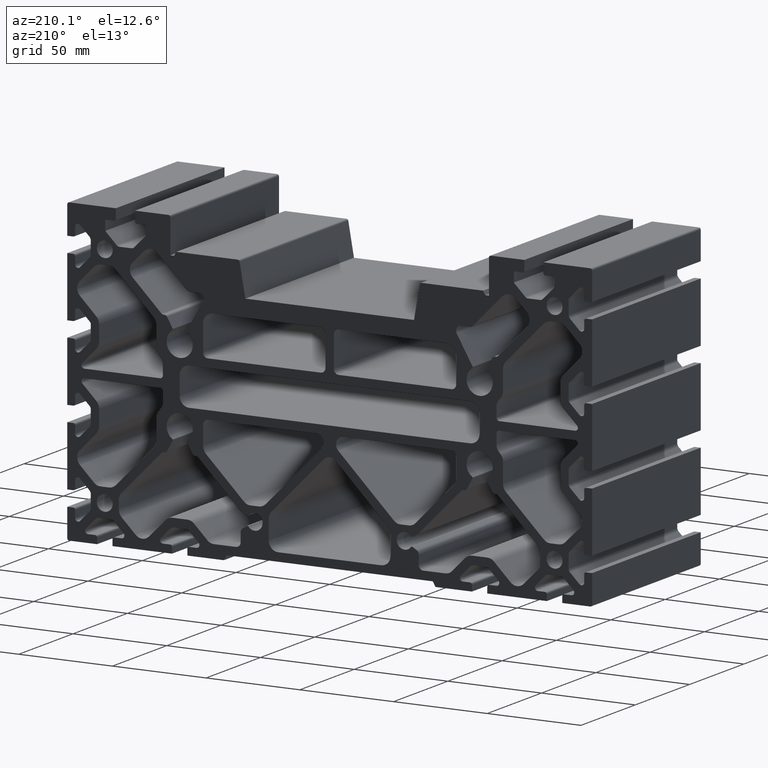
[diagram: clean part render]
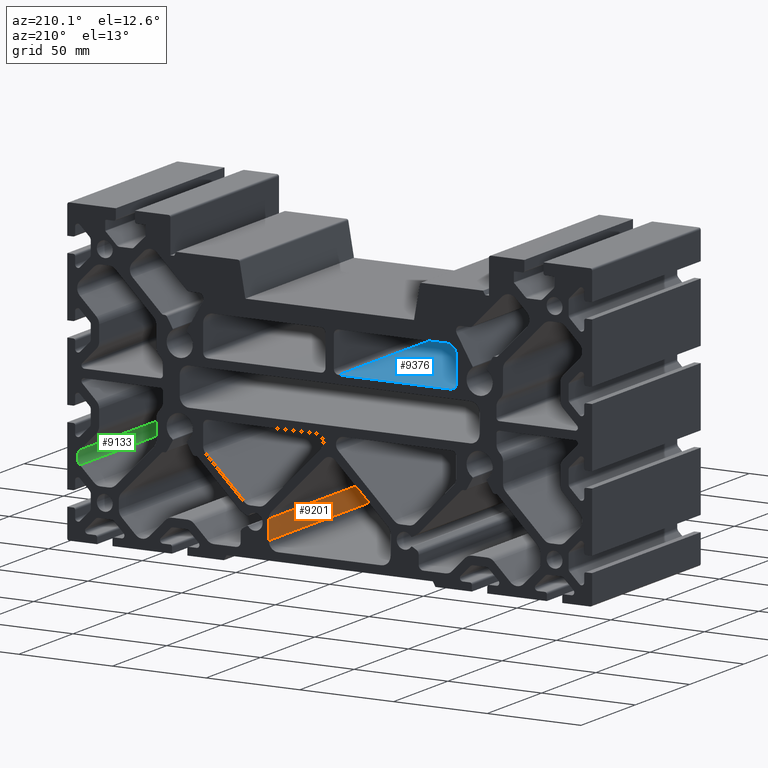
[diagram: same view with three faces highlighted in distinct colors, each labeled with its STEP entity id]
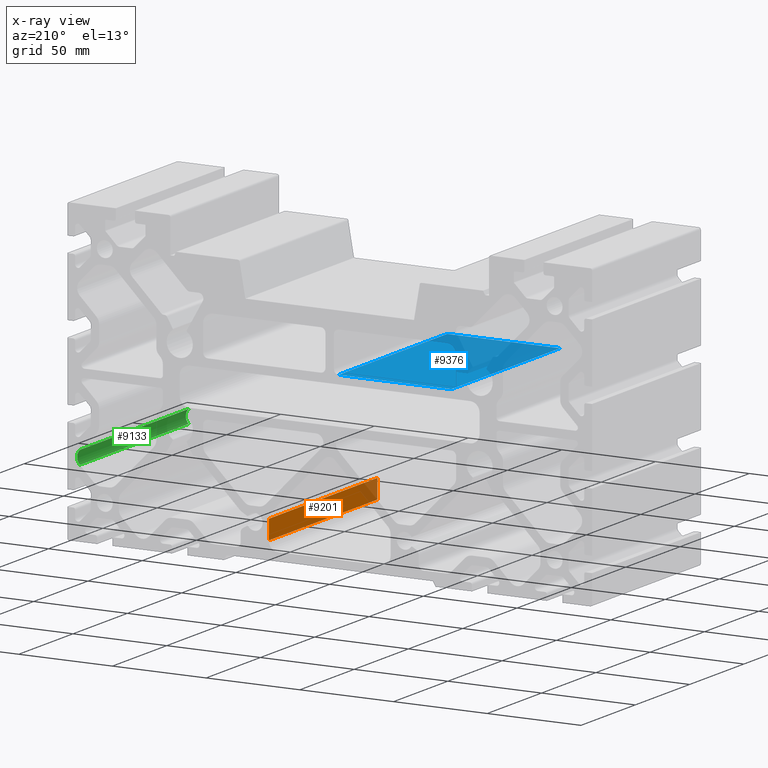
[diagram: x-ray of the same camera — body ghosted, the three highlighted faces saturated]
A machine part, auxiliary view with three faces highlighted in distinct colors.
The next image is the same camera in x-ray (body ghosted, the three faces saturated) — at least one of them is partly hidden behind the body in this view.
Their STEP definitions:

[orange] entity #9201 — the highlighted planar face has unit normal (1, 0, -0).
#104=PLANE('',#9820);
#416=FACE_OUTER_BOUND('',#890,.T.);
#890=EDGE_LOOP('',(#6488,#6489,#6490,#6491));
#1507=LINE('',#14005,#2477);
#1508=LINE('',#14009,#2478);
#1509=LINE('',#14011,#2479);
#1510=LINE('',#14012,#2480);
#2477=VECTOR('',#11197,10.);
#2478=VECTOR('',#11202,10.);
#2479=VECTOR('',#11203,10.);
#2480=VECTOR('',#11204,10.);
#3902=VERTEX_POINT('',#14002);
#3903=VERTEX_POINT('',#14004);
#3904=VERTEX_POINT('',#14008);
#3905=VERTEX_POINT('',#14010);
#4958=EDGE_CURVE('',#3902,#3903,#1507,.T.);
#4960=EDGE_CURVE('',#3902,#3904,#1508,.T.);
#4961=EDGE_CURVE('',#3904,#3905,#1509,.T.);
#4962=EDGE_CURVE('',#3905,#3903,#1510,.T.);
#6488=ORIENTED_EDGE('',*,*,#4958,.F.);
#6489=ORIENTED_EDGE('',*,*,#4960,.T.);
#6490=ORIENTED_EDGE('',*,*,#4961,.T.);
#6491=ORIENTED_EDGE('',*,*,#4962,.T.);
#9201=ADVANCED_FACE('',(#416),#104,.F.);
#9820=AXIS2_PLACEMENT_3D('',#14007,#11200,#11201);
#11197=DIRECTION('',(0.,1.,0.));
#11200=DIRECTION('center_axis',(1.,0.,-9.86864910809966E-16));
#11201=DIRECTION('ref_axis',(-9.86864910809966E-16,0.,-1.));
#11202=DIRECTION('',(9.86864910809966E-16,0.,1.));
#11203=DIRECTION('',(0.,1.,0.));
#11204=DIRECTION('',(-9.86864910809966E-16,0.,-1.));
#14002=CARTESIAN_POINT('',(32.5,-50.,-68.0000000106118));
#14004=CARTESIAN_POINT('',(32.5,50.,-68.0000000106118));
#14005=CARTESIAN_POINT('',(32.5,0.,-68.0000000106118));
#14007=CARTESIAN_POINT('Origin',(32.5,0.,-57.7530483395276));
#14008=CARTESIAN_POINT('',(32.5,-50.,-57.7530483395276));
#14009=CARTESIAN_POINT('',(32.5,-50.,-57.7530483395276));
#14010=CARTESIAN_POINT('',(32.5,50.,-57.7530483395276));
#14011=CARTESIAN_POINT('',(32.5,0.,-57.7530483395276));
#14012=CARTESIAN_POINT('',(32.5,50.,-57.7530483395276));

[blue] entity #9376 — the highlighted planar face has unit normal (0, 0, -1).
#201=PLANE('',#10151);
#591=FACE_OUTER_BOUND('',#1065,.T.);
#1065=EDGE_LOOP('',(#7188,#7189,#7190,#7191));
#1878=LINE('',#15061,#2848);
#1879=LINE('',#15065,#2849);
#1880=LINE('',#15067,#2850);
#1881=LINE('',#15068,#2851);
#2848=VECTOR('',#12230,10.);
#2849=VECTOR('',#12235,10.);
#2850=VECTOR('',#12236,10.);
#2851=VECTOR('',#12237,10.);
#4256=VERTEX_POINT('',#15058);
#4257=VERTEX_POINT('',#15060);
#4258=VERTEX_POINT('',#15064);
#4259=VERTEX_POINT('',#15066);
#5485=EDGE_CURVE('',#4256,#4257,#1878,.T.);
#5487=EDGE_CURVE('',#4258,#4256,#1879,.T.);
#5488=EDGE_CURVE('',#4258,#4259,#1880,.T.);
#5489=EDGE_CURVE('',#4257,#4259,#1881,.T.);
#7188=ORIENTED_EDGE('',*,*,#5485,.F.);
#7189=ORIENTED_EDGE('',*,*,#5487,.F.);
#7190=ORIENTED_EDGE('',*,*,#5488,.T.);
#7191=ORIENTED_EDGE('',*,*,#5489,.F.);
#9376=ADVANCED_FACE('',(#591),#201,.F.);
#10151=AXIS2_PLACEMENT_3D('',#15063,#12233,#12234);
#12230=DIRECTION('',(0.,1.,0.));
#12233=DIRECTION('center_axis',(0.,0.,-1.));
#12234=DIRECTION('ref_axis',(-1.,0.,0.));
#12235=DIRECTION('',(-1.,0.,0.));
#12236=DIRECTION('',(0.,1.,0.));
#12237=DIRECTION('',(1.,0.,0.));
#15058=CARTESIAN_POINT('',(-65.0000000000001,-50.,14.5));
#15060=CARTESIAN_POINT('',(-65.0000000000001,50.,14.5));
#15061=CARTESIAN_POINT('',(-65.0000000000001,0.,14.5));
#15063=CARTESIAN_POINT('Origin',(-4.75000000000005,0.,14.5));
#15064=CARTESIAN_POINT('',(-4.75000000000005,-50.,14.5));
#15065=CARTESIAN_POINT('',(-42.6862552686595,-50.,14.5));
#15066=CARTESIAN_POINT('',(-4.75000000000005,50.,14.5));
#15067=CARTESIAN_POINT('',(-4.75000000000005,0.,14.5));
#15068=CARTESIAN_POINT('',(-42.6862552686595,50.,14.5));

[green] entity #9133 — the highlighted cylindrical surface (edge-blend (fillet) strip) has radius 5 mm, axis along (0, -1, 0).
#348=FACE_OUTER_BOUND('',#822,.T.);
#822=EDGE_LOOP('',(#6216,#6217,#6218,#6219));
#1380=LINE('',#13597,#2350);
#1382=LINE('',#13603,#2352);
#2350=VECTOR('',#10780,10.);
#2352=VECTOR('',#10786,10.);
#3270=CIRCLE('',#9675,5.);
#3271=CIRCLE('',#9676,5.);
#3766=VERTEX_POINT('',#13594);
#3767=VERTEX_POINT('',#13596);
#3768=VERTEX_POINT('',#13600);
#3769=VERTEX_POINT('',#13602);
#4754=EDGE_CURVE('',#3767,#3766,#1380,.T.);
#4756=EDGE_CURVE('',#3766,#3768,#3270,.T.);
#4757=EDGE_CURVE('',#3769,#3768,#1382,.T.);
#4758=EDGE_CURVE('',#3769,#3767,#3271,.T.);
#6216=ORIENTED_EDGE('',*,*,#4754,.T.);
#6217=ORIENTED_EDGE('',*,*,#4756,.T.);
#6218=ORIENTED_EDGE('',*,*,#4757,.F.);
#6219=ORIENTED_EDGE('',*,*,#4758,.T.);
#8886=CYLINDRICAL_SURFACE('',#9674,5.);
#9133=ADVANCED_FACE('',(#348),#8886,.F.);
#9674=AXIS2_PLACEMENT_3D('',#13599,#10782,#10783);
#9675=AXIS2_PLACEMENT_3D('',#13601,#10784,#10785);
#9676=AXIS2_PLACEMENT_3D('',#13604,#10787,#10788);
#10780=DIRECTION('',(0.,1.,0.));
#10782=DIRECTION('center_axis',(0.,-1.,0.));
#10783=DIRECTION('ref_axis',(0.70710678118655,0.,-0.707106781186545));
#10784=DIRECTION('center_axis',(0.,1.,0.));
#10785=DIRECTION('ref_axis',(0.70710678118655,0.,-0.707106781186545));
#10786=DIRECTION('',(0.,1.,0.));
#10787=DIRECTION('center_axis',(0.,-1.,0.));
#10788=DIRECTION('ref_axis',(0.70710678118655,0.,-0.707106781186545));
#13594=CARTESIAN_POINT('',(133.282485589315,50.,-36.4644660940222));
#13596=CARTESIAN_POINT('',(133.282485589315,-50.,-36.4644660940222));
#13597=CARTESIAN_POINT('',(133.282485589315,0.,-36.4644660940222));
#13599=CARTESIAN_POINT('Origin',(129.746951683382,0.,-39.9999999999549));
#13600=CARTESIAN_POINT('',(133.282485589315,50.,-43.5355339058876));
#13601=CARTESIAN_POINT('Origin',(129.746951683382,50.,-39.9999999999549));
#13602=CARTESIAN_POINT('',(133.282485589315,-50.,-43.5355339058876));
#13603=CARTESIAN_POINT('',(133.282485589315,0.,-43.5355339058876));
#13604=CARTESIAN_POINT('Origin',(129.746951683382,-50.,-39.9999999999549));